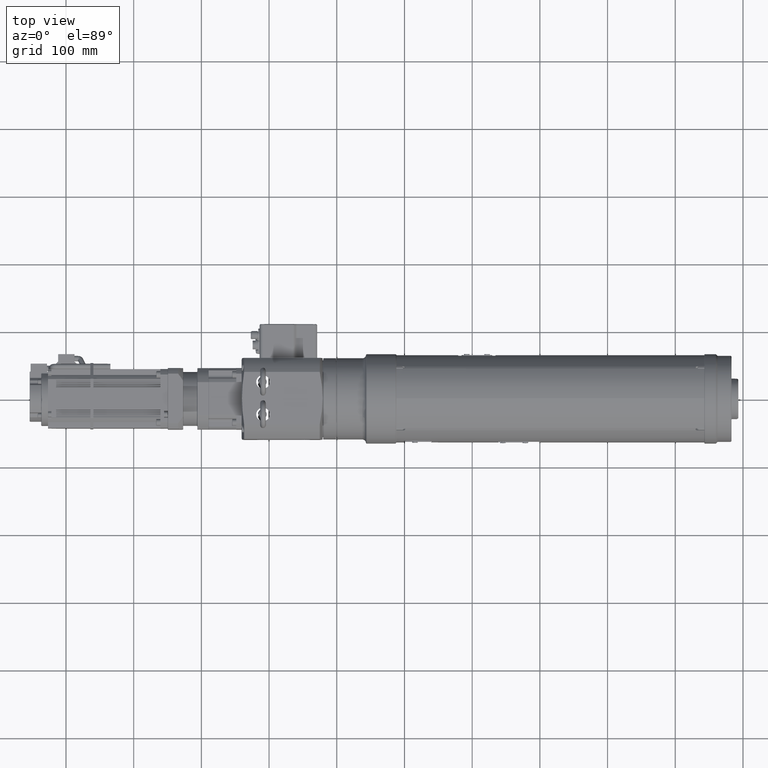
[diagram: clean part render]
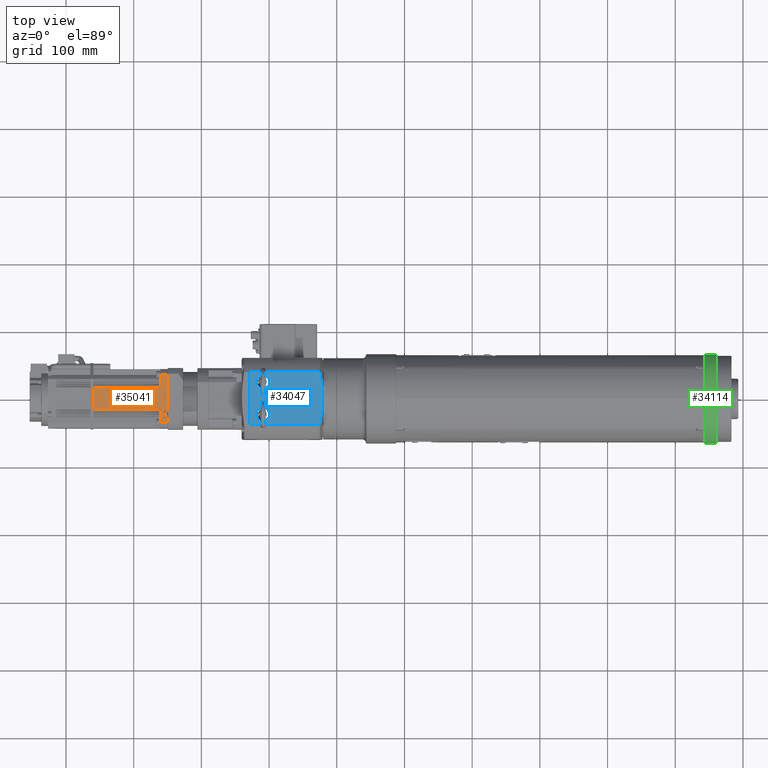
[diagram: same view with three faces highlighted in distinct colors, each labeled with its STEP entity id]
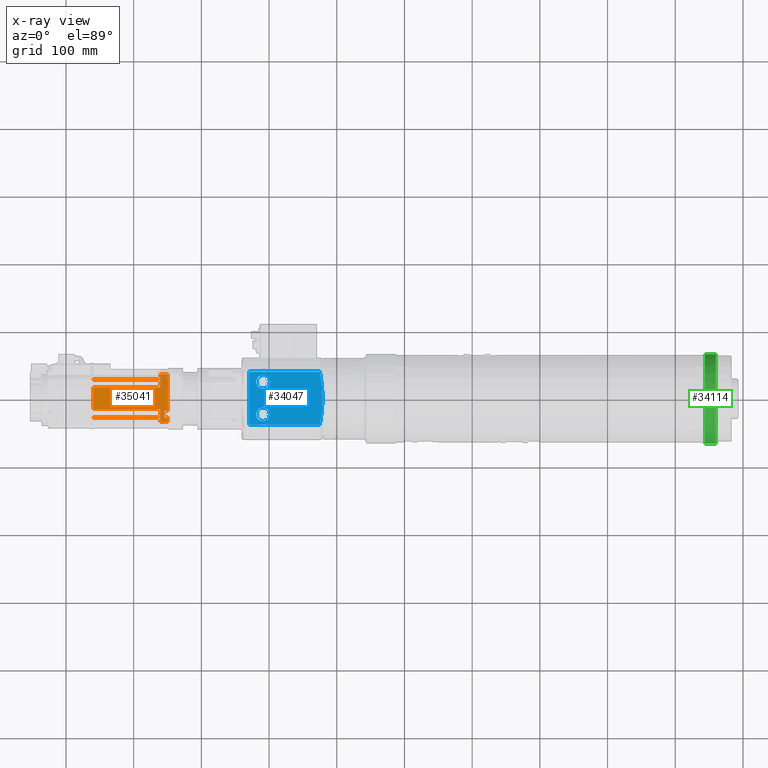
[diagram: x-ray of the same camera — body ghosted, the three highlighted faces saturated]
A machine part, top view with three faces highlighted in distinct colors.
The next image is the same camera in x-ray (body ghosted, the three faces saturated) — at least one of them is partly hidden behind the body in this view.
Their STEP definitions:

[orange] entity #35041 — the highlighted planar face has unit normal (0, 0, 1).
#1587=PLANE('',#38552);
#3684=FACE_OUTER_BOUND('',#5677,.T.);
#5677=EDGE_LOOP('',(#29733,#29734,#29735,#29736,#29737,#29738,#29739,#29740,
#29741,#29742,#29743,#29744,#29745,#29746,#29747,#29748,#29749,#29750,#29751,
#29752,#29753,#29754,#29755,#29756,#29757,#29758,#29759,#29760,#29761,#29762,
#29763,#29764,#29765,#29766,#29767,#29768,#29769,#29770,#29771,#29772,#29773,
#29774,#29775,#29776));
#8600=LINE('',#54743,#11280);
#8613=LINE('',#54783,#11293);
#9098=LINE('',#57510,#11778);
#9099=LINE('',#57515,#11779);
#9226=LINE('',#57903,#11906);
#9756=LINE('',#59633,#12436);
#9766=LINE('',#59662,#12446);
#9776=LINE('',#59691,#12456);
#9786=LINE('',#59720,#12466);
#9796=LINE('',#59749,#12476);
#9806=LINE('',#59778,#12486);
#9816=LINE('',#59807,#12496);
#9826=LINE('',#59836,#12506);
#9899=LINE('',#59988,#12579);
#9901=LINE('',#59993,#12581);
#9907=LINE('',#60004,#12587);
#9909=LINE('',#60009,#12589);
#9915=LINE('',#60020,#12595);
#9917=LINE('',#60025,#12597);
#9923=LINE('',#60036,#12603);
#9925=LINE('',#60041,#12605);
#9931=LINE('',#60052,#12611);
#9933=LINE('',#60057,#12613);
#9939=LINE('',#60068,#12619);
#9941=LINE('',#60073,#12621);
#9947=LINE('',#60084,#12627);
#9949=LINE('',#60089,#12629);
#9955=LINE('',#60100,#12635);
#9957=LINE('',#60105,#12637);
#10001=LINE('',#60224,#12681);
#10003=LINE('',#60233,#12683);
#10006=LINE('',#60238,#12686);
#10066=LINE('',#60399,#12746);
#10067=LINE('',#60400,#12747);
#10068=LINE('',#60401,#12748);
#10069=LINE('',#60402,#12749);
#10070=LINE('',#60403,#12750);
#10071=LINE('',#60404,#12751);
#10072=LINE('',#60405,#12752);
#10073=LINE('',#60406,#12753);
#10074=LINE('',#60407,#12754);
#10075=LINE('',#60409,#12755);
#10076=LINE('',#60411,#12756);
#10077=LINE('',#60412,#12757);
#11280=VECTOR('',#43064,10.);
#11293=VECTOR('',#43091,10.);
#11778=VECTOR('',#45070,10.);
#11779=VECTOR('',#45075,10.);
#11906=VECTOR('',#45412,10.);
#12436=VECTOR('',#47092,10.);
#12446=VECTOR('',#47116,10.);
#12456=VECTOR('',#47140,10.);
#12466=VECTOR('',#47164,10.);
#12476=VECTOR('',#47188,10.);
#12486=VECTOR('',#47212,10.);
#12496=VECTOR('',#47236,10.);
#12506=VECTOR('',#47260,10.);
#12579=VECTOR('',#47411,10.);
#12581=VECTOR('',#47417,10.);
#12587=VECTOR('',#47427,10.);
#12589=VECTOR('',#47433,10.);
#12595=VECTOR('',#47443,10.);
#12597=VECTOR('',#47449,10.);
#12603=VECTOR('',#47459,10.);
#12605=VECTOR('',#47465,10.);
#12611=VECTOR('',#47475,10.);
#12613=VECTOR('',#47481,10.);
#12619=VECTOR('',#47491,10.);
#12621=VECTOR('',#47497,10.);
#12627=VECTOR('',#47507,10.);
#12629=VECTOR('',#47513,10.);
#12635=VECTOR('',#47523,10.);
#12637=VECTOR('',#47529,10.);
#12681=VECTOR('',#47647,10.);
#12683=VECTOR('',#47657,10.);
#12686=VECTOR('',#47664,10.);
#12746=VECTOR('',#47822,10.);
#12747=VECTOR('',#47823,10.);
#12748=VECTOR('',#47824,10.);
#12749=VECTOR('',#47825,10.);
#12750=VECTOR('',#47826,10.);
#12751=VECTOR('',#47827,10.);
#12752=VECTOR('',#47828,10.);
#12753=VECTOR('',#47829,10.);
#12754=VECTOR('',#47830,10.);
#12755=VECTOR('',#47831,10.);
#12756=VECTOR('',#47832,10.);
#12757=VECTOR('',#47833,10.);
#14452=VERTEX_POINT('',#54741);
#14453=VERTEX_POINT('',#54742);
#14472=VERTEX_POINT('',#54780);
#14473=VERTEX_POINT('',#54782);
#15103=VERTEX_POINT('',#57506);
#15106=VERTEX_POINT('',#57513);
#15250=VERTEX_POINT('',#57900);
#15251=VERTEX_POINT('',#57902);
#15812=VERTEX_POINT('',#59631);
#15813=VERTEX_POINT('',#59632);
#15824=VERTEX_POINT('',#59660);
#15825=VERTEX_POINT('',#59661);
#15836=VERTEX_POINT('',#59689);
#15837=VERTEX_POINT('',#59690);
#15848=VERTEX_POINT('',#59718);
#15849=VERTEX_POINT('',#59719);
#15860=VERTEX_POINT('',#59747);
#15861=VERTEX_POINT('',#59748);
#15872=VERTEX_POINT('',#59776);
#15873=VERTEX_POINT('',#59777);
#15884=VERTEX_POINT('',#59805);
#15885=VERTEX_POINT('',#59806);
#15896=VERTEX_POINT('',#59834);
#15897=VERTEX_POINT('',#59835);
#15937=VERTEX_POINT('',#59986);
#15938=VERTEX_POINT('',#59992);
#15941=VERTEX_POINT('',#60002);
#15942=VERTEX_POINT('',#60008);
#15945=VERTEX_POINT('',#60018);
#15946=VERTEX_POINT('',#60024);
#15949=VERTEX_POINT('',#60034);
#15950=VERTEX_POINT('',#60040);
#15953=VERTEX_POINT('',#60050);
#15954=VERTEX_POINT('',#60056);
#15957=VERTEX_POINT('',#60066);
#15958=VERTEX_POINT('',#60072);
#15961=VERTEX_POINT('',#60082);
#15962=VERTEX_POINT('',#60088);
#15965=VERTEX_POINT('',#60098);
#15966=VERTEX_POINT('',#60104);
#16002=VERTEX_POINT('',#60220);
#16004=VERTEX_POINT('',#60223);
#16060=VERTEX_POINT('',#60408);
#16061=VERTEX_POINT('',#60410);
#18359=EDGE_CURVE('',#14452,#14453,#8600,.T.);
#18379=EDGE_CURVE('',#14472,#14473,#8613,.T.);
#19363=EDGE_CURVE('',#14453,#15103,#9098,.T.);
#19365=EDGE_CURVE('',#14472,#15106,#9099,.T.);
#19554=EDGE_CURVE('',#15251,#15250,#9226,.T.);
#20377=EDGE_CURVE('',#15812,#15813,#9756,.T.);
#20391=EDGE_CURVE('',#15824,#15825,#9766,.T.);
#20405=EDGE_CURVE('',#15836,#15837,#9776,.T.);
#20419=EDGE_CURVE('',#15848,#15849,#9786,.T.);
#20433=EDGE_CURVE('',#15860,#15861,#9796,.T.);
#20447=EDGE_CURVE('',#15872,#15873,#9806,.T.);
#20461=EDGE_CURVE('',#15884,#15885,#9816,.T.);
#20475=EDGE_CURVE('',#15896,#15897,#9826,.T.);
#20552=EDGE_CURVE('',#15937,#15837,#9899,.T.);
#20554=EDGE_CURVE('',#15836,#15938,#9901,.T.);
#20560=EDGE_CURVE('',#15941,#15885,#9907,.T.);
#20562=EDGE_CURVE('',#15884,#15942,#9909,.T.);
#20568=EDGE_CURVE('',#15945,#15873,#9915,.T.);
#20570=EDGE_CURVE('',#15872,#15946,#9917,.T.);
#20576=EDGE_CURVE('',#15949,#15825,#9923,.T.);
#20578=EDGE_CURVE('',#15824,#15950,#9925,.T.);
#20584=EDGE_CURVE('',#15953,#15849,#9931,.T.);
#20586=EDGE_CURVE('',#15848,#15954,#9933,.T.);
#20592=EDGE_CURVE('',#15957,#15897,#9939,.T.);
#20594=EDGE_CURVE('',#15896,#15958,#9941,.T.);
#20600=EDGE_CURVE('',#15961,#15861,#9947,.T.);
#20602=EDGE_CURVE('',#15860,#15962,#9949,.T.);
#20608=EDGE_CURVE('',#15965,#15813,#9955,.T.);
#20610=EDGE_CURVE('',#15812,#15966,#9957,.T.);
#20668=EDGE_CURVE('',#16004,#16002,#10001,.T.);
#20673=EDGE_CURVE('',#16002,#14473,#10003,.T.);
#20676=EDGE_CURVE('',#14452,#16004,#10006,.T.);
#20753=EDGE_CURVE('',#15965,#15962,#10066,.T.);
#20754=EDGE_CURVE('',#15961,#15958,#10067,.T.);
#20755=EDGE_CURVE('',#15957,#15954,#10068,.T.);
#20756=EDGE_CURVE('',#15953,#15950,#10069,.T.);
#20757=EDGE_CURVE('',#15949,#15946,#10070,.T.);
#20758=EDGE_CURVE('',#15945,#15942,#10071,.T.);
#20759=EDGE_CURVE('',#15941,#15938,#10072,.T.);
#20760=EDGE_CURVE('',#15937,#15251,#10073,.T.);
#20761=EDGE_CURVE('',#15250,#15103,#10074,.T.);
#20762=EDGE_CURVE('',#15106,#16060,#10075,.T.);
#20763=EDGE_CURVE('',#16060,#16061,#10076,.T.);
#20764=EDGE_CURVE('',#16061,#15966,#10077,.T.);
#29733=ORIENTED_EDGE('',*,*,#20753,.T.);
#29734=ORIENTED_EDGE('',*,*,#20602,.F.);
#29735=ORIENTED_EDGE('',*,*,#20433,.T.);
#29736=ORIENTED_EDGE('',*,*,#20600,.F.);
#29737=ORIENTED_EDGE('',*,*,#20754,.T.);
#29738=ORIENTED_EDGE('',*,*,#20594,.F.);
#29739=ORIENTED_EDGE('',*,*,#20475,.T.);
#29740=ORIENTED_EDGE('',*,*,#20592,.F.);
#29741=ORIENTED_EDGE('',*,*,#20755,.T.);
#29742=ORIENTED_EDGE('',*,*,#20586,.F.);
#29743=ORIENTED_EDGE('',*,*,#20419,.T.);
#29744=ORIENTED_EDGE('',*,*,#20584,.F.);
#29745=ORIENTED_EDGE('',*,*,#20756,.T.);
#29746=ORIENTED_EDGE('',*,*,#20578,.F.);
#29747=ORIENTED_EDGE('',*,*,#20391,.T.);
#29748=ORIENTED_EDGE('',*,*,#20576,.F.);
#29749=ORIENTED_EDGE('',*,*,#20757,.T.);
#29750=ORIENTED_EDGE('',*,*,#20570,.F.);
#29751=ORIENTED_EDGE('',*,*,#20447,.T.);
#29752=ORIENTED_EDGE('',*,*,#20568,.F.);
#29753=ORIENTED_EDGE('',*,*,#20758,.T.);
#29754=ORIENTED_EDGE('',*,*,#20562,.F.);
#29755=ORIENTED_EDGE('',*,*,#20461,.T.);
#29756=ORIENTED_EDGE('',*,*,#20560,.F.);
#29757=ORIENTED_EDGE('',*,*,#20759,.T.);
#29758=ORIENTED_EDGE('',*,*,#20554,.F.);
#29759=ORIENTED_EDGE('',*,*,#20405,.T.);
#29760=ORIENTED_EDGE('',*,*,#20552,.F.);
#29761=ORIENTED_EDGE('',*,*,#20760,.T.);
#29762=ORIENTED_EDGE('',*,*,#19554,.T.);
#29763=ORIENTED_EDGE('',*,*,#20761,.T.);
#29764=ORIENTED_EDGE('',*,*,#19363,.F.);
#29765=ORIENTED_EDGE('',*,*,#18359,.F.);
#29766=ORIENTED_EDGE('',*,*,#20676,.T.);
#29767=ORIENTED_EDGE('',*,*,#20668,.T.);
#29768=ORIENTED_EDGE('',*,*,#20673,.T.);
#29769=ORIENTED_EDGE('',*,*,#18379,.F.);
#29770=ORIENTED_EDGE('',*,*,#19365,.T.);
#29771=ORIENTED_EDGE('',*,*,#20762,.T.);
#29772=ORIENTED_EDGE('',*,*,#20763,.T.);
#29773=ORIENTED_EDGE('',*,*,#20764,.T.);
#29774=ORIENTED_EDGE('',*,*,#20610,.F.);
#29775=ORIENTED_EDGE('',*,*,#20377,.T.);
#29776=ORIENTED_EDGE('',*,*,#20608,.F.);
#35041=ADVANCED_FACE('',(#3684),#1587,.T.);
#38552=AXIS2_PLACEMENT_3D('',#60398,#47820,#47821);
#43064=DIRECTION('',(7.70858088703352E-19,-1.,3.99680288865055E-15));
#43091=DIRECTION('',(7.70858088703352E-19,-1.,3.99680288865055E-15));
#45070=DIRECTION('',(-1.,-3.45670581835889E-16,2.53728308590351E-16));
#45075=DIRECTION('',(-1.,-3.45670581835889E-16,2.53728308590351E-16));
#45412=DIRECTION('',(1.,3.45670581835889E-16,-2.53728308590351E-16));
#47092=DIRECTION('',(-6.76768388862528E-16,-1.,3.99680288865055E-15));
#47116=DIRECTION('',(8.03528977304344E-16,-1.,3.99680288865055E-15));
#47140=DIRECTION('',(8.03528977304345E-16,-1.,3.99680288865055E-15));
#47164=DIRECTION('',(8.03528977304344E-16,-1.,3.99680288865055E-15));
#47188=DIRECTION('',(-6.76768388862528E-16,-1.,3.99680288865055E-15));
#47212=DIRECTION('',(-6.76768388862528E-16,-1.,3.99680288865055E-15));
#47236=DIRECTION('',(-6.76768388862528E-16,-1.,3.99680288865055E-15));
#47260=DIRECTION('',(8.03528977304344E-16,-1.,3.99680288865055E-15));
#47411=DIRECTION('',(1.,-6.33512946344665E-16,-2.53728308590347E-16));
#47417=DIRECTION('',(-1.,6.19094465505378E-16,2.53728308590347E-16));
#47427=DIRECTION('',(1.,-7.20023831380392E-16,-2.53728308590347E-16));
#47433=DIRECTION('',(-1.,6.47931427183953E-16,2.53728308590347E-16));
#47443=DIRECTION('',(1.,-1.08048585236259E-15,-2.53728308590345E-16));
#47449=DIRECTION('',(-1.,1.05164889068401E-15,2.53728308590345E-16));
#47459=DIRECTION('',(1.,-9.36301043969708E-16,-2.53728308590346E-16));
#47465=DIRECTION('',(-1.,7.92116235576831E-16,2.53728308590346E-16));
#47475=DIRECTION('',(1.,-6.19094465505378E-16,-2.53728308590347E-16));
#47481=DIRECTION('',(-1.,5.61420542148227E-16,2.53728308590347E-16));
#47491=DIRECTION('',(1.,-1.5770307864817E-16,-2.53728308590349E-16));
#47497=DIRECTION('',(-1.,1.5770307864817E-16,2.53728308590349E-16));
#47507=DIRECTION('',(1.,-6.19094465505378E-16,-2.53728308590347E-16));
#47513=DIRECTION('',(-1.,6.19094465505378E-16,2.53728308590347E-16));
#47523=DIRECTION('',(1.,-6.76768388862528E-16,-2.53728308590347E-16));
#47529=DIRECTION('',(-1.,5.03746618791076E-16,2.53728308590348E-16));
#47647=DIRECTION('',(1.65548903513319E-16,1.,-3.99680288865055E-15));
#47657=DIRECTION('',(1.,-1.6554890351332E-16,-2.53728308590349E-16));
#47664=DIRECTION('',(-1.,1.6554890351332E-16,2.53728308590349E-16));
#47820=DIRECTION('center_axis',(2.5372830859035E-16,3.99680288865055E-15,
1.));
#47821=DIRECTION('ref_axis',(-3.4567058183589E-16,1.,-3.99680288865055E-15));
#47822=DIRECTION('',(3.4567058183589E-16,-1.,3.99680288865055E-15));
#47823=DIRECTION('',(3.4567058183589E-16,-1.,3.99680288865055E-15));
#47824=DIRECTION('',(3.4567058183589E-16,-1.,3.99680288865055E-15));
#47825=DIRECTION('',(3.4567058183589E-16,-1.,3.99680288865055E-15));
#47826=DIRECTION('',(3.4567058183589E-16,-1.,3.99680288865055E-15));
#47827=DIRECTION('',(3.4567058183589E-16,-1.,3.99680288865055E-15));
#47828=DIRECTION('',(3.4567058183589E-16,-1.,3.99680288865055E-15));
#47829=DIRECTION('',(3.4567058183589E-16,-1.,3.99680288865055E-15));
#47830=DIRECTION('',(3.4567058183589E-16,-1.,3.99680288865055E-15));
#47831=DIRECTION('',(3.4567058183589E-16,-1.,3.99680288865055E-15));
#47832=DIRECTION('',(-1.,-3.45670581835889E-16,2.53728308590351E-16));
#47833=DIRECTION('',(3.4567058183589E-16,-1.,3.99680288865055E-15));
#54741=CARTESIAN_POINT('',(-249.500000000001,-28.4999999999994,43.5));
#54742=CARTESIAN_POINT('',(-249.500000000001,-35.2668399491641,43.5));
#54743=CARTESIAN_POINT('',(-249.500000000001,-17.6334199745817,43.5));
#54780=CARTESIAN_POINT('',(-249.500000000001,35.2668399491653,43.4999999999998));
#54782=CARTESIAN_POINT('',(-249.500000000001,-18.4999999999994,43.5));
#54783=CARTESIAN_POINT('',(-249.500000000001,-17.6334199745817,43.5));
#57506=CARTESIAN_POINT('',(-260.500000000001,-35.2668399491641,43.5));
#57510=CARTESIAN_POINT('',(-249.500000000001,-35.2668399491641,43.5));
#57513=CARTESIAN_POINT('',(-260.500000000001,35.2668399491653,43.4999999999998));
#57515=CARTESIAN_POINT('',(-249.500000000001,35.2668399491653,43.4999999999998));
#57900=CARTESIAN_POINT('',(-260.500000000001,-28.4999999999994,43.5));
#57902=CARTESIAN_POINT('',(-359.500000000001,-28.4999999999995,43.5));
#57903=CARTESIAN_POINT('',(-338.000000000001,-28.4999999999995,43.5));
#59631=CARTESIAN_POINT('',(-260.500000000001,27.6000000000006,43.4999999999998));
#59632=CARTESIAN_POINT('',(-260.500000000001,24.9000000000006,43.4999999999998));
#59633=CARTESIAN_POINT('',(-260.500000000001,-4.13341997458177,43.4999999999999));
#59660=CARTESIAN_POINT('',(-260.500000000001,-15.8999999999995,43.5));
#59661=CARTESIAN_POINT('',(-260.500000000001,-18.5999999999995,43.5));
#59662=CARTESIAN_POINT('',(-260.500000000001,-25.8834199745818,43.5));
#59689=CARTESIAN_POINT('',(-260.500000000001,-24.8999999999994,43.5));
#59690=CARTESIAN_POINT('',(-260.500000000001,-27.5999999999994,43.5));
#59691=CARTESIAN_POINT('',(-260.500000000001,-30.3834199745818,43.5));
#59718=CARTESIAN_POINT('',(-260.500000000001,18.6000000000006,43.4999999999998));
#59719=CARTESIAN_POINT('',(-260.500000000001,15.9000000000006,43.4999999999998));
#59720=CARTESIAN_POINT('',(-260.500000000001,-8.63341997458176,43.4999999999999));
#59747=CARTESIAN_POINT('',(-260.500000000001,24.6000000000006,43.4999999999998));
#59748=CARTESIAN_POINT('',(-260.500000000001,21.9000000000006,43.4999999999998));
#59749=CARTESIAN_POINT('',(-260.500000000001,-5.63341997458176,43.4999999999999));
#59776=CARTESIAN_POINT('',(-260.500000000001,-18.8999999999995,43.5));
#59777=CARTESIAN_POINT('',(-260.500000000001,-21.5999999999995,43.5));
#59778=CARTESIAN_POINT('',(-260.500000000001,-27.3834199745818,43.5));
#59805=CARTESIAN_POINT('',(-260.500000000001,-21.8999999999995,43.5));
#59806=CARTESIAN_POINT('',(-260.500000000001,-24.5999999999995,43.5));
#59807=CARTESIAN_POINT('',(-260.500000000001,-28.8834199745818,43.5));
#59834=CARTESIAN_POINT('',(-260.500000000001,21.6000000000006,43.4999999999998));
#59835=CARTESIAN_POINT('',(-260.500000000001,18.9000000000006,43.4999999999998));
#59836=CARTESIAN_POINT('',(-260.500000000001,-7.13341997458177,43.4999999999999));
#59986=CARTESIAN_POINT('',(-359.500000000001,-27.5999999999994,43.5));
#59988=CARTESIAN_POINT('',(-255.000000000001,-27.5999999999994,43.5));
#59992=CARTESIAN_POINT('',(-359.500000000001,-24.8999999999994,43.5));
#59993=CARTESIAN_POINT('',(-332.000000000001,-24.8999999999994,43.5));
#60002=CARTESIAN_POINT('',(-359.500000000001,-24.5999999999994,43.5));
#60004=CARTESIAN_POINT('',(-255.000000000001,-24.5999999999995,43.5));
#60008=CARTESIAN_POINT('',(-359.500000000001,-21.8999999999994,43.5));
#60009=CARTESIAN_POINT('',(-332.000000000001,-21.8999999999994,43.5));
#60018=CARTESIAN_POINT('',(-359.500000000001,-21.5999999999994,43.5));
#60020=CARTESIAN_POINT('',(-255.000000000001,-21.5999999999995,43.5));
#60024=CARTESIAN_POINT('',(-359.500000000001,-18.8999999999994,43.5));
#60025=CARTESIAN_POINT('',(-332.000000000001,-18.8999999999994,43.5));
#60034=CARTESIAN_POINT('',(-359.500000000001,-18.5999999999994,43.5));
#60036=CARTESIAN_POINT('',(-255.000000000001,-18.5999999999995,43.5));
#60040=CARTESIAN_POINT('',(-359.500000000001,-15.8999999999994,43.5));
#60041=CARTESIAN_POINT('',(-332.000000000001,-15.8999999999994,43.5));
#60050=CARTESIAN_POINT('',(-359.500000000001,15.9000000000007,43.4999999999999));
#60052=CARTESIAN_POINT('',(-255.000000000001,15.9000000000006,43.4999999999998));
#60056=CARTESIAN_POINT('',(-359.500000000001,18.6000000000007,43.4999999999999));
#60057=CARTESIAN_POINT('',(-332.000000000001,18.6000000000006,43.4999999999999));
#60066=CARTESIAN_POINT('',(-359.500000000001,18.9000000000006,43.4999999999999));
#60068=CARTESIAN_POINT('',(-255.000000000001,18.9000000000006,43.4999999999998));
#60072=CARTESIAN_POINT('',(-359.500000000001,21.6000000000006,43.4999999999998));
#60073=CARTESIAN_POINT('',(-332.000000000001,21.6000000000006,43.4999999999998));
#60082=CARTESIAN_POINT('',(-359.500000000001,21.9000000000006,43.4999999999998));
#60084=CARTESIAN_POINT('',(-255.000000000001,21.9000000000006,43.4999999999998));
#60088=CARTESIAN_POINT('',(-359.500000000001,24.6000000000006,43.4999999999998));
#60089=CARTESIAN_POINT('',(-332.000000000001,24.6000000000006,43.4999999999998));
#60098=CARTESIAN_POINT('',(-359.500000000001,24.9000000000006,43.4999999999998));
#60100=CARTESIAN_POINT('',(-255.000000000001,24.9000000000006,43.4999999999998));
#60104=CARTESIAN_POINT('',(-359.500000000001,27.6000000000006,43.4999999999998));
#60105=CARTESIAN_POINT('',(-332.000000000001,27.6000000000006,43.4999999999998));
#60220=CARTESIAN_POINT('',(-255.000000000001,-18.4999999999994,43.5));
#60223=CARTESIAN_POINT('',(-255.000000000001,-28.4999999999994,43.5));
#60224=CARTESIAN_POINT('',(-255.000000000001,-29.3834199745818,43.5));
#60233=CARTESIAN_POINT('',(-249.500000000001,-18.4999999999994,43.5));
#60238=CARTESIAN_POINT('',(-249.500000000001,-28.4999999999994,43.5));
#60398=CARTESIAN_POINT('Origin',(-249.500000000001,-35.2668399491641,43.5));
#60399=CARTESIAN_POINT('',(-359.500000000001,-15.6334199745818,43.5));
#60400=CARTESIAN_POINT('',(-359.500000000001,-15.6334199745818,43.5));
#60401=CARTESIAN_POINT('',(-359.500000000001,-15.6334199745818,43.5));
#60402=CARTESIAN_POINT('',(-359.500000000001,-15.6334199745818,43.5));
#60403=CARTESIAN_POINT('',(-359.500000000001,-15.6334199745818,43.5));
#60404=CARTESIAN_POINT('',(-359.500000000001,-15.6334199745818,43.5));
#60405=CARTESIAN_POINT('',(-359.500000000001,-15.6334199745818,43.5));
#60406=CARTESIAN_POINT('',(-359.500000000001,-15.6334199745818,43.5));
#60407=CARTESIAN_POINT('',(-260.500000000001,-35.6334199745818,43.5));
#60408=CARTESIAN_POINT('',(-260.500000000001,28.5000000000006,43.4999999999998));
#60409=CARTESIAN_POINT('',(-260.500000000001,0.366580025418225,43.4999999999999));
#60410=CARTESIAN_POINT('',(-359.500000000001,28.5000000000005,43.4999999999998));
#60411=CARTESIAN_POINT('',(-338.000000000001,28.5000000000005,43.4999999999998));
#60412=CARTESIAN_POINT('',(-359.500000000001,-15.6334199745818,43.5));

[blue] entity #34047 — the highlighted planar face has unit normal (0, -0, 1).
#204=(
BOUNDED_CURVE()
B_SPLINE_CURVE(2,(#53550,#53551,#53552),.UNSPECIFIED.,.F.,.F.)
B_SPLINE_CURVE_WITH_KNOTS((3,3),(0.,3.91605875352253),.UNSPECIFIED.)
CURVE()
GEOMETRIC_REPRESENTATION_ITEM()
RATIONAL_B_SPLINE_CURVE((1.,1.04682058316285,1.))
REPRESENTATION_ITEM('')
);
#208=(
BOUNDED_CURVE()
B_SPLINE_CURVE(2,(#53568,#53569,#53570),.UNSPECIFIED.,.F.,.F.)
B_SPLINE_CURVE_WITH_KNOTS((3,3),(3.91605875352253,7.83211750704505),
 .UNSPECIFIED.)
CURVE()
GEOMETRIC_REPRESENTATION_ITEM()
RATIONAL_B_SPLINE_CURVE((1.,1.04682058316285,1.))
REPRESENTATION_ITEM('')
);
#367=FACE_BOUND('',#4581,.T.);
#368=FACE_BOUND('',#4582,.T.);
#994=PLANE('',#36608);
#2690=FACE_OUTER_BOUND('',#4580,.T.);
#4580=EDGE_LOOP('',(#24430,#24431,#24432,#24433,#24434));
#4581=EDGE_LOOP('',(#24435,#24436));
#4582=EDGE_LOOP('',(#24437,#24438));
#6433=CIRCLE('',#36317,10.);
#6434=CIRCLE('',#36318,10.);
#6594=CIRCLE('',#36609,10.);
#6595=CIRCLE('',#36610,10.);
#8383=LINE('',#53395,#11063);
#8398=LINE('',#53528,#11078);
#8402=LINE('',#53541,#11082);
#11063=VECTOR('',#42091,10.);
#11078=VECTOR('',#42238,10.);
#11082=VECTOR('',#42252,10.);
#13949=VERTEX_POINT('',#52673);
#13950=VERTEX_POINT('',#52674);
#14113=VERTEX_POINT('',#53393);
#14114=VERTEX_POINT('',#53394);
#14157=VERTEX_POINT('',#53527);
#14161=VERTEX_POINT('',#53539);
#14163=VERTEX_POINT('',#53549);
#14165=VERTEX_POINT('',#53572);
#14166=VERTEX_POINT('',#53573);
#17618=EDGE_CURVE('',#13949,#13950,#6433,.T.);
#17619=EDGE_CURVE('',#13950,#13949,#6434,.T.);
#17870=EDGE_CURVE('',#14113,#14114,#8383,.T.);
#17934=EDGE_CURVE('',#14114,#14157,#8398,.T.);
#17941=EDGE_CURVE('',#14161,#14113,#8402,.T.);
#17944=EDGE_CURVE('',#14157,#14163,#204,.T.);
#17951=EDGE_CURVE('',#14163,#14161,#208,.T.);
#17952=EDGE_CURVE('',#14165,#14166,#6594,.T.);
#17953=EDGE_CURVE('',#14166,#14165,#6595,.T.);
#24430=ORIENTED_EDGE('',*,*,#17941,.F.);
#24431=ORIENTED_EDGE('',*,*,#17951,.F.);
#24432=ORIENTED_EDGE('',*,*,#17944,.F.);
#24433=ORIENTED_EDGE('',*,*,#17934,.F.);
#24434=ORIENTED_EDGE('',*,*,#17870,.F.);
#24435=ORIENTED_EDGE('',*,*,#17952,.T.);
#24436=ORIENTED_EDGE('',*,*,#17953,.T.);
#24437=ORIENTED_EDGE('',*,*,#17618,.T.);
#24438=ORIENTED_EDGE('',*,*,#17619,.T.);
#34047=ADVANCED_FACE('',(#2690,#367,#368),#994,.T.);
#36317=AXIS2_PLACEMENT_3D('',#52675,#41559,#41560);
#36318=AXIS2_PLACEMENT_3D('',#52676,#41561,#41562);
#36608=AXIS2_PLACEMENT_3D('',#53571,#42269,#42270);
#36609=AXIS2_PLACEMENT_3D('',#53574,#42271,#42272);
#36610=AXIS2_PLACEMENT_3D('',#53575,#42273,#42274);
#41559=DIRECTION('center_axis',(-1.00312885021234E-15,1.06883360669053E-15,
-1.));
#41560=DIRECTION('ref_axis',(1.,-1.75459838081475E-30,3.33562915705179E-46));
#41561=DIRECTION('center_axis',(-1.00312885021234E-15,1.06883360669053E-15,
-1.));
#41562=DIRECTION('ref_axis',(1.,-1.75459838081475E-30,3.33562915705179E-46));
#42091=DIRECTION('',(-1.29444656332743E-16,1.,1.06883360669053E-15));
#42238=DIRECTION('',(1.,1.29444656332744E-16,-1.00312885021234E-15));
#42252=DIRECTION('',(-1.,-1.29444656332744E-16,1.00312885021234E-15));
#42269=DIRECTION('center_axis',(1.00312885021234E-15,-1.06883360669053E-15,
1.));
#42270=DIRECTION('ref_axis',(1.29444656332743E-16,-1.,-1.06883360669053E-15));
#42271=DIRECTION('center_axis',(-1.00312885021234E-15,1.06883360669053E-15,
-1.));
#42272=DIRECTION('ref_axis',(1.,-1.75459838081475E-30,3.33562915705179E-46));
#42273=DIRECTION('center_axis',(-1.00312885021234E-15,1.06883360669053E-15,
-1.));
#42274=DIRECTION('ref_axis',(1.,-1.75459838081475E-30,3.33562915705179E-46));
#52673=CARTESIAN_POINT('',(-99.0000000000015,24.0000000000001,59.9999999999994));
#52674=CARTESIAN_POINT('',(-119.000000000001,24.0000000000001,59.9999999999998));
#52675=CARTESIAN_POINT('Origin',(-109.000000000001,24.0000000000001,59.9999999999998));
#52676=CARTESIAN_POINT('Origin',(-109.000000000001,24.0000000000001,59.9999999999998));
#53393=CARTESIAN_POINT('',(-129.000000000002,-38.8876587107156,59.9999999999997));
#53394=CARTESIAN_POINT('',(-129.000000000002,38.8876587107161,59.9999999999998));
#53395=CARTESIAN_POINT('',(-129.000000000002,30.0000000000002,59.9999999999998));
#53527=CARTESIAN_POINT('',(-25.1856576940659,38.8876587107161,59.9999999999997));
#53528=CARTESIAN_POINT('',(-77.0928288470337,38.8876587107161,59.9999999999998));
#53539=CARTESIAN_POINT('',(-25.1856576940659,-38.8876587107156,59.9999999999996));
#53541=CARTESIAN_POINT('',(-77.0928288470337,-38.8876587107156,59.9999999999997));
#53549=CARTESIAN_POINT('',(-21.0000000000016,2.41231162925794E-13,59.9999999999997));
#53550=CARTESIAN_POINT('Ctrl Pts',(-25.1856576940659,38.8876587107161,59.9999999999997));
#53551=CARTESIAN_POINT('Ctrl Pts',(-21.0000000000017,17.7434184231395,59.9999999999997));
#53552=CARTESIAN_POINT('Ctrl Pts',(-21.0000000000017,2.41231162925794E-13,
59.9999999999997));
#53568=CARTESIAN_POINT('Ctrl Pts',(-21.0000000000017,2.41231162925794E-13,
59.9999999999997));
#53569=CARTESIAN_POINT('Ctrl Pts',(-21.0000000000017,-17.743418423139,59.9999999999997));
#53570=CARTESIAN_POINT('Ctrl Pts',(-25.1856576940659,-38.8876587107156,
59.9999999999996));
#53571=CARTESIAN_POINT('Origin',(-129.000000000002,60.0000000000002,59.9999999999998));
#53572=CARTESIAN_POINT('',(-99.0000000000014,-23.9999999999996,59.9999999999993));
#53573=CARTESIAN_POINT('',(-119.000000000001,-23.9999999999996,59.9999999999997));
#53574=CARTESIAN_POINT('Origin',(-109.000000000001,-23.9999999999996,59.9999999999997));
#53575=CARTESIAN_POINT('Origin',(-109.000000000001,-23.9999999999996,59.9999999999997));

[green] entity #34114 — the highlighted cylindrical surface (bore or boss wall) has radius 66 mm, axis along (1, 0, 0).
#2757=FACE_OUTER_BOUND('',#4664,.T.);
#4664=EDGE_LOOP('',(#24854,#24855,#24856,#24857,#24858,#24859));
#6654=CIRCLE('',#36717,65.9999999999981);
#6655=CIRCLE('',#36718,65.9999999999981);
#6694=CIRCLE('',#36776,65.9999999999981);
#6695=CIRCLE('',#36777,65.9999999999981);
#8532=LINE('',#54276,#11212);
#11212=VECTOR('',#42734,65.9999999999981);
#14300=VERTEX_POINT('',#54156);
#14301=VERTEX_POINT('',#54158);
#14345=VERTEX_POINT('',#54275);
#14346=VERTEX_POINT('',#54277);
#18140=EDGE_CURVE('',#14300,#14301,#6654,.T.);
#18141=EDGE_CURVE('',#14301,#14300,#6655,.T.);
#18194=EDGE_CURVE('',#14300,#14345,#8532,.T.);
#18195=EDGE_CURVE('',#14346,#14345,#6694,.T.);
#18196=EDGE_CURVE('',#14345,#14346,#6695,.T.);
#24854=ORIENTED_EDGE('',*,*,#18141,.F.);
#24855=ORIENTED_EDGE('',*,*,#18140,.F.);
#24856=ORIENTED_EDGE('',*,*,#18194,.T.);
#24857=ORIENTED_EDGE('',*,*,#18195,.F.);
#24858=ORIENTED_EDGE('',*,*,#18196,.F.);
#24859=ORIENTED_EDGE('',*,*,#18194,.F.);
#31354=CYLINDRICAL_SURFACE('',#36775,65.9999999999981);
#34114=ADVANCED_FACE('',(#2757),#31354,.T.);
#36717=AXIS2_PLACEMENT_3D('',#54159,#42602,#42603);
#36718=AXIS2_PLACEMENT_3D('',#54160,#42604,#42605);
#36775=AXIS2_PLACEMENT_3D('',#54274,#42732,#42733);
#36776=AXIS2_PLACEMENT_3D('',#54278,#42735,#42736);
#36777=AXIS2_PLACEMENT_3D('',#54279,#42737,#42738);
#42602=DIRECTION('center_axis',(1.,6.11946619567656E-17,0.));
#42603=DIRECTION('ref_axis',(-1.69849306721386E-33,2.7755575615629E-17,
1.));
#42604=DIRECTION('center_axis',(1.,6.11946619567656E-17,0.));
#42605=DIRECTION('ref_axis',(-1.69849306721386E-33,2.7755575615629E-17,
1.));
#42732=DIRECTION('center_axis',(1.,6.11946619567656E-17,0.));
#42733=DIRECTION('ref_axis',(6.11946619567656E-17,-1.,2.7755575615629E-17));
#42734=DIRECTION('',(-1.,-6.11946619567656E-17,0.));
#42735=DIRECTION('center_axis',(-1.,-6.11946619567656E-17,0.));
#42736=DIRECTION('ref_axis',(-6.11946619567656E-17,1.,-2.7755575615629E-17));
#42737=DIRECTION('center_axis',(-1.,-6.11946619567656E-17,0.));
#42738=DIRECTION('ref_axis',(-6.11946619567656E-17,1.,-2.7755575615629E-17));
#54156=CARTESIAN_POINT('',(560.000000000001,65.9999999999981,6.25080088374084E-15));
#54158=CARTESIAN_POINT('',(560.000000000001,-65.9999999999981,1.83186799063146E-15));
#54159=CARTESIAN_POINT('Origin',(560.000000000001,-1.40747722500552E-15,
-8.75111523449223E-61));
#54160=CARTESIAN_POINT('Origin',(560.000000000001,-1.40747722500552E-15,
-8.75111523449223E-61));
#54274=CARTESIAN_POINT('Origin',(551.5,-1.92763185163806E-15,-8.75111523449223E-61));
#54275=CARTESIAN_POINT('',(543.5,65.9999999999981,6.25080088374084E-15));
#54276=CARTESIAN_POINT('',(551.5,65.9999999999981,6.25080088374084E-15));
#54277=CARTESIAN_POINT('',(543.5,-65.9999999999981,9.91453686500376E-15));
#54278=CARTESIAN_POINT('Origin',(543.5,-2.41718914729222E-15,-8.75111523449223E-61));
#54279=CARTESIAN_POINT('Origin',(543.5,-2.41718914729222E-15,-8.75111523449223E-61));